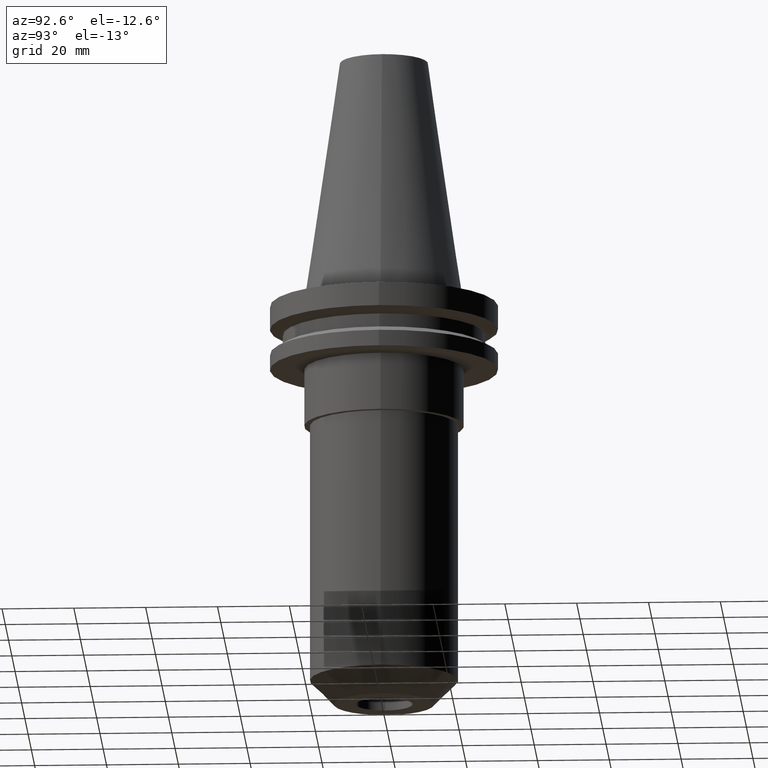
[diagram: clean part render]
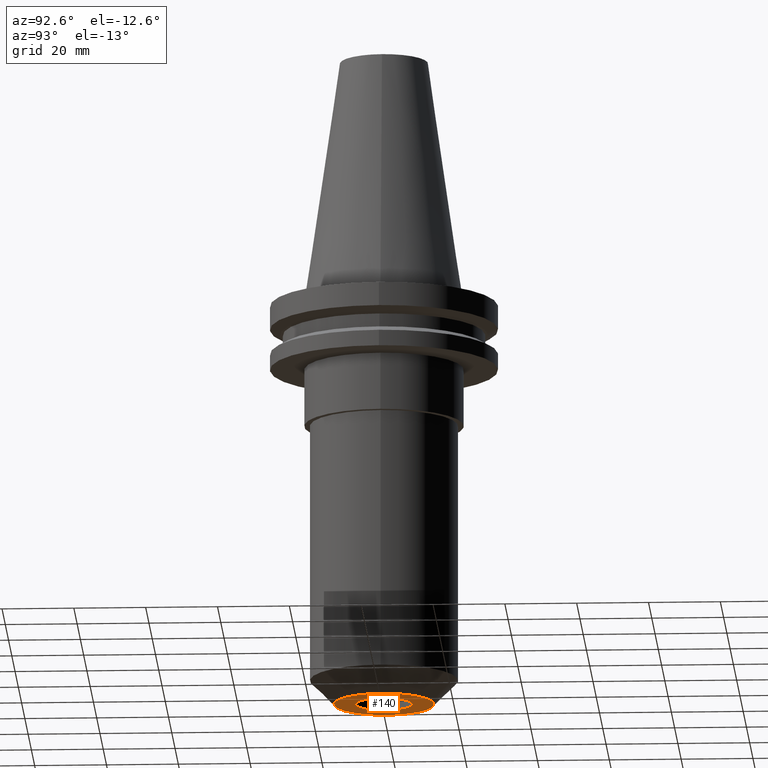
[diagram: same view with one face highlighted and labeled with its STEP entity id]
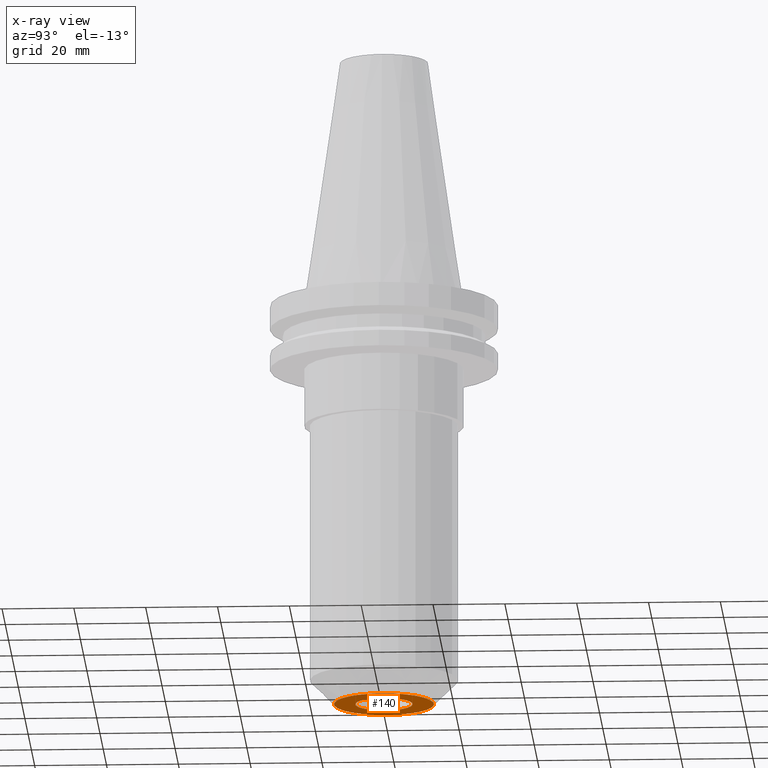
[diagram: x-ray of the same camera — body ghosted, the highlighted face saturated]
A machine part, auxiliary view. The second image highlights one B-rep face of the part: STEP entity #140.
The next image is the same camera in x-ray: the body ghosted, the highlighted face saturated — about 0% of this face is hidden behind the body in this view.
In plain terms, the highlighted planar face has unit normal (0, -0, 1).
Its self-contained STEP definition (entity closure, byte-faithful):
#1 = DIRECTION ( 'NONE',  ( 0.000000000000000000, -0.000000000000000000, 1.000000000000000000 ) ) ;
#54 = AXIS2_PLACEMENT_3D ( 'NONE', #527, #1, #334 ) ;
#67 = PLANE ( 'NONE',  #54 ) ;
#71 = DIRECTION ( 'NONE',  ( 1.000000000000000000, 0.000000000000000000, 0.000000000000000000 ) ) ;
#96 = ORIENTED_EDGE ( 'NONE', *, *, #533, .F. ) ;
#140 = ADVANCED_FACE ( 'NONE', ( #267, #790 ), #67, .F. ) ;
#153 = EDGE_LOOP ( 'NONE', ( #469, #545 ) ) ;
#162 = AXIS2_PLACEMENT_3D ( 'NONE', #180, #781, #836 ) ;
#168 = DIRECTION ( 'NONE',  ( 1.000000000000000000, 0.000000000000000000, 0.000000000000000000 ) ) ;
#180 = CARTESIAN_POINT ( 'NONE',  ( 0.000000000000000000, 0.000000000000000000, -114.2999999999999972 ) ) ;
#182 = DIRECTION ( 'NONE',  ( -0.000000000000000000, -0.000000000000000000, 1.000000000000000000 ) ) ;
#216 = EDGE_CURVE ( 'NONE', #843, #347, #382, .T. ) ;
#241 = CIRCLE ( 'NONE', #277, 13.93749999999998046 ) ;
#267 = FACE_OUTER_BOUND ( 'NONE', #826, .T. ) ;
#277 = AXIS2_PLACEMENT_3D ( 'NONE', #413, #531, #71 ) ;
#329 = EDGE_CURVE ( 'NONE', #386, #405, #428, .T. ) ;
#334 = DIRECTION ( 'NONE',  ( 1.000000000000000000, 0.000000000000000000, 0.000000000000000000 ) ) ;
#347 = VERTEX_POINT ( 'NONE', #447 ) ;
#362 = CARTESIAN_POINT ( 'NONE',  ( 0.000000000000000000, 0.000000000000000000, -114.2999999999999972 ) ) ;
#382 = CIRCLE ( 'NONE', #694, 7.940000000000001279 ) ;
#386 = VERTEX_POINT ( 'NONE', #777 ) ;
#405 = VERTEX_POINT ( 'NONE', #713 ) ;
#413 = CARTESIAN_POINT ( 'NONE',  ( 0.000000000000000000, 0.000000000000000000, -114.3000000000000114 ) ) ;
#428 = CIRCLE ( 'NONE', #585, 13.93749999999998046 ) ;
#437 = ORIENTED_EDGE ( 'NONE', *, *, #329, .F. ) ;
#447 = CARTESIAN_POINT ( 'NONE',  ( -7.940000000000001279, 9.723695585229987093E-16, -114.2999999999999972 ) ) ;
#469 = ORIENTED_EDGE ( 'NONE', *, *, #216, .T. ) ;
#527 = CARTESIAN_POINT ( 'NONE',  ( 0.000000000000000000, 7.940000000000001279, -114.3000000000000114 ) ) ;
#531 = DIRECTION ( 'NONE',  ( -0.000000000000000000, -0.000000000000000000, 1.000000000000000000 ) ) ;
#533 = EDGE_CURVE ( 'NONE', #405, #386, #241, .T. ) ;
#535 = CIRCLE ( 'NONE', #162, 7.940000000000001279 ) ;
#545 = ORIENTED_EDGE ( 'NONE', *, *, #801, .T. ) ;
#574 = CARTESIAN_POINT ( 'NONE',  ( 7.940000000000001279, 0.000000000000000000, -114.2999999999999972 ) ) ;
#585 = AXIS2_PLACEMENT_3D ( 'NONE', #783, #182, #844 ) ;
#632 = DIRECTION ( 'NONE',  ( -0.000000000000000000, -0.000000000000000000, 1.000000000000000000 ) ) ;
#694 = AXIS2_PLACEMENT_3D ( 'NONE', #362, #632, #168 ) ;
#713 = CARTESIAN_POINT ( 'NONE',  ( 13.93749999999998046, 0.000000000000000000, -114.3000000000000114 ) ) ;
#777 = CARTESIAN_POINT ( 'NONE',  ( -13.93749999999998046, 2.117108154025985688E-15, -114.3000000000000114 ) ) ;
#781 = DIRECTION ( 'NONE',  ( -0.000000000000000000, -0.000000000000000000, 1.000000000000000000 ) ) ;
#783 = CARTESIAN_POINT ( 'NONE',  ( 0.000000000000000000, 0.000000000000000000, -114.3000000000000114 ) ) ;
#790 = FACE_BOUND ( 'NONE', #153, .T. ) ;
#801 = EDGE_CURVE ( 'NONE', #347, #843, #535, .T. ) ;
#826 = EDGE_LOOP ( 'NONE', ( #96, #437 ) ) ;
#836 = DIRECTION ( 'NONE',  ( 1.000000000000000000, 0.000000000000000000, 0.000000000000000000 ) ) ;
#843 = VERTEX_POINT ( 'NONE', #574 ) ;
#844 = DIRECTION ( 'NONE',  ( 1.000000000000000000, 0.000000000000000000, 0.000000000000000000 ) ) ;